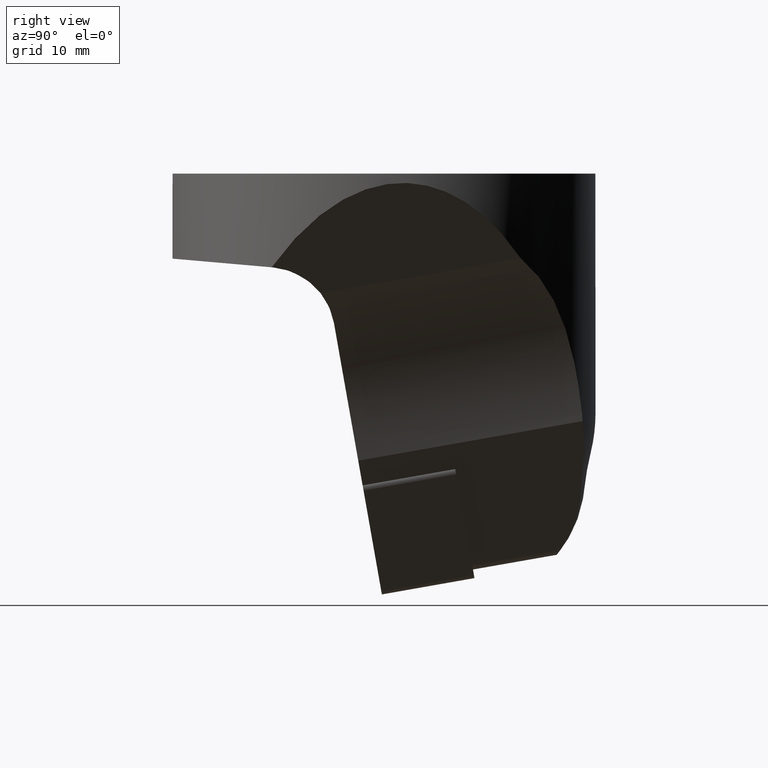
[diagram: clean part render]
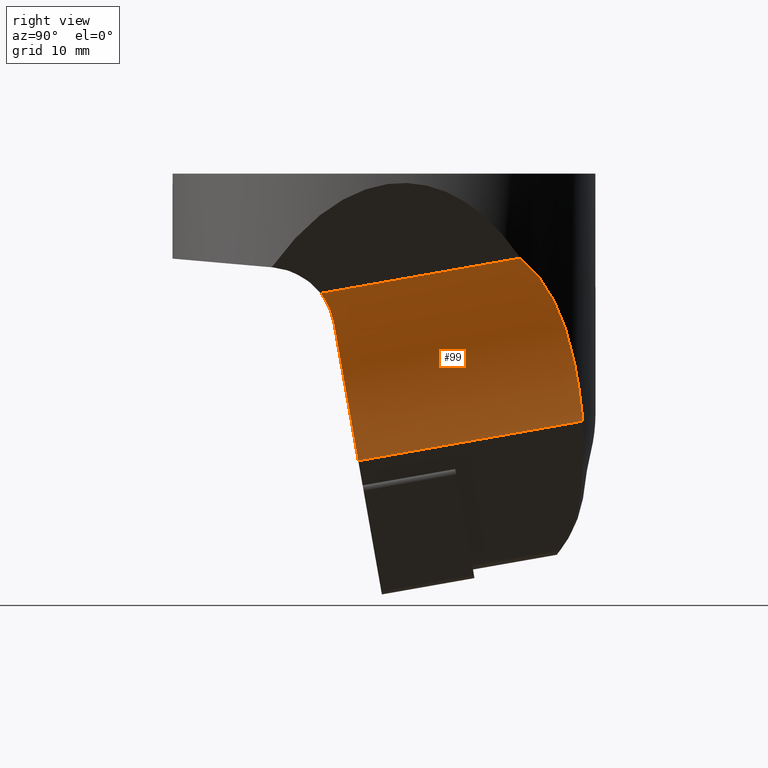
[diagram: same view with one face highlighted and labeled with its STEP entity id]
A machine part, right view. The second image highlights one B-rep face of the part: STEP entity #99.
In plain terms, the highlighted cylindrical surface (partial cylindrical patch) has radius 50 mm, axis along (-0, -0.9848, -0.1736).
Its self-contained STEP definition (entity closure, byte-faithful):
#99=ADVANCED_FACE('',(#154),#155,.F.);
#154=FACE_OUTER_BOUND('',#213,.T.);
#155=CYLINDRICAL_SURFACE('',#214,50.0);
#213=EDGE_LOOP('',(#428,#429,#430,#431,#432,#433));
#214=AXIS2_PLACEMENT_3D('',#434,#435,#436);
#428=ORIENTED_EDGE('',*,*,#533,.F.);
#429=ORIENTED_EDGE('',*,*,#521,.F.);
#430=ORIENTED_EDGE('',*,*,#539,.F.);
#431=ORIENTED_EDGE('',*,*,#531,.F.);
#432=ORIENTED_EDGE('',*,*,#515,.F.);
#433=ORIENTED_EDGE('',*,*,#503,.F.);
#434=CARTESIAN_POINT('',(57.0,-0.597189712016932,-46.0435942112873));
#435=DIRECTION('',(-1.15813234356353E-016,-0.984807753012208,-0.17364817766693));
#436=DIRECTION('',(-2.6894295116405E-015,0.17364817766693,-0.984807753012208));
#503=EDGE_CURVE('',#606,#608,#609,.T.);
#515=EDGE_CURVE('',#608,#628,#629,.T.);
#521=EDGE_CURVE('',#637,#639,#640,.T.);
#531=EDGE_CURVE('',#628,#650,#658,.T.);
#533=EDGE_CURVE('',#639,#606,#661,.T.);
#539=EDGE_CURVE('',#650,#637,#667,.T.);
#606=VERTEX_POINT('',#772);
#608=VERTEX_POINT('',#774);
#609=LINE('',#775,#776);
#628=VERTEX_POINT('',#858);
#629=CIRCLE('',#859,50.0);
#637=VERTEX_POINT('',#868);
#639=VERTEX_POINT('',#870);
#640=B_SPLINE_CURVE_WITH_KNOTS('',3,(#871,#872,#873,#874,#875,#876,#877,#878,#879,#880,#881,#882,#883,#884,#885,#886,#887,#888),.UNSPECIFIED.,.F.,.F.,(4,2,2,2,2,2,2,2,4),(72.0968360991804,72.8097293091166,75.331385709712,77.8530421103074,80.3746985109028,82.8963549114983,85.8652275959176,88.834100280337,93.7295258768041),.UNSPECIFIED.);
#650=VERTEX_POINT('',#915);
#658=B_SPLINE_CURVE_WITH_KNOTS('',3,(#931,#932,#933,#934,#935,#936,#937,#938),.UNSPECIFIED.,.F.,.F.,(4,2,2,4),(40.2005737103557,42.1930664876474,44.185559264939,44.8256717155463),.UNSPECIFIED.);
#661=CIRCLE('',#941,15.451015167547);
#667=LINE('',#949,#950);
#772=CARTESIAN_POINT('',(8.55146388740701,23.4652854800811,-29.2513003937335));
#774=CARTESIAN_POINT('',(8.55146388740704,-3.03763322227365,-33.9244800284815));
#775=CARTESIAN_POINT('',(8.55146388740701,23.4652854800811,-29.2513003937335));
#776=VECTOR('',#1021,26.9117689430154);
#858=CARTESIAN_POINT('',(16.1708375293659,-5.90328101451511,-17.6725838029148));
#859=AXIS2_PLACEMENT_3D('',#1038,#1039,#1040);
#868=CARTESIAN_POINT('',(19.0873445413524,16.1453794740076,-9.99053601463005));
#870=CARTESIAN_POINT('',(8.81714083515269,23.3935467061556,-28.2502267294459));
#871=CARTESIAN_POINT('',(19.0873445413524,16.1453794740076,-9.99053601463005));
#872=CARTESIAN_POINT('',(18.956461354269,16.3001118226992,-10.1178226157587));
#873=CARTESIAN_POINT('',(18.8253957814848,16.451242586141,-10.2478449179464));
#874=CARTESIAN_POINT('',(18.2311729124811,17.120489443097,-10.8490826801835));
#875=CARTESIAN_POINT('',(17.7429790651609,17.6254082987164,-11.3759348905534));
#876=CARTESIAN_POINT('',(16.7521868643588,18.5696677130135,-12.5281815872479));
#877=CARTESIAN_POINT('',(16.2497301193129,19.0091553264623,-13.1535773200606));
#878=CARTESIAN_POINT('',(15.2656292865166,19.8081362009176,-14.4706314192746));
#879=CARTESIAN_POINT('',(14.7837945099474,20.1680532376424,-15.1626100360613));
#880=CARTESIAN_POINT('',(13.869833379078,20.8071784126762,-16.5697509551524));
#881=CARTESIAN_POINT('',(13.4377299819672,21.0865718566612,-17.2848439954105));
#882=CARTESIAN_POINT('',(12.5741804701585,21.6145676086534,-18.8096548824895));
#883=CARTESIAN_POINT('',(12.122326229952,21.8697548835279,-19.6728768000347));
#884=CARTESIAN_POINT('',(11.2617685222519,22.3250877185219,-21.464810770742));
#885=CARTESIAN_POINT('',(10.8530694129142,22.5252696306858,-22.3935156795656));
#886=CARTESIAN_POINT('',(9.84142001838325,22.9918984827921,-24.9224055935273));
#887=CARTESIAN_POINT('',(9.28500500027378,23.2172064407221,-26.5675651780667));
#888=CARTESIAN_POINT('',(8.81714083515269,23.3935467061556,-28.2502267294459));
#915=CARTESIAN_POINT('',(19.0873445413524,-7.46434240141171,-14.1535669882893));
#931=CARTESIAN_POINT('',(16.1708375293659,-5.90328101451511,-17.6725838029148));
#932=CARTESIAN_POINT('',(16.554211525061,-5.99745830642574,-17.1384778394812));
#933=CARTESIAN_POINT('',(16.9628335759599,-6.14877948914644,-16.6019909257179));
#934=CARTESIAN_POINT('',(17.8055716568436,-6.56516240251247,-15.5641120442478));
#935=CARTESIAN_POINT('',(18.239694948844,-6.83006751569863,-15.0626631470648));
#936=CARTESIAN_POINT('',(18.8107161874729,-7.24655607956745,-14.443953918781));
#937=CARTESIAN_POINT('',(18.9493794358429,-7.35300615953439,-14.2968690796796));
#938=CARTESIAN_POINT('',(19.0873445413524,-7.46434240141171,-14.1535669882893));
#941=AXIS2_PLACEMENT_3D('',#1076,#1077,#1078);
#949=CARTESIAN_POINT('',(19.0873445413524,-7.46434240141171,-14.1535669882893));
#950=VECTOR('',#1090,23.9739398915218);
#1021=DIRECTION('',(1.27887965433474E-015,-0.984807753012209,-0.173648177666926));
#1038=CARTESIAN_POINT('',(57.0000000000001,-0.891554261270156,-46.0954986234847));
#1039=DIRECTION('',(1.15813234356353E-016,0.984807753012208,0.17364817766693));
#1040=DIRECTION('',(-2.6894295116405E-015,0.17364817766693,-0.984807753012208));
#1076=CARTESIAN_POINT('',(13.6224154341211,8.98718276757723,-31.096256210232));
#1077=DIRECTION('',(-0.912281394395515,-0.347208175959423,0.2172306147547));
#1078=DIRECTION('',(-0.311000574839984,0.932389476183886,0.184196924922046));
#1090=DIRECTION('',(9.26191547696154E-017,0.984807753012208,0.173648177666931));